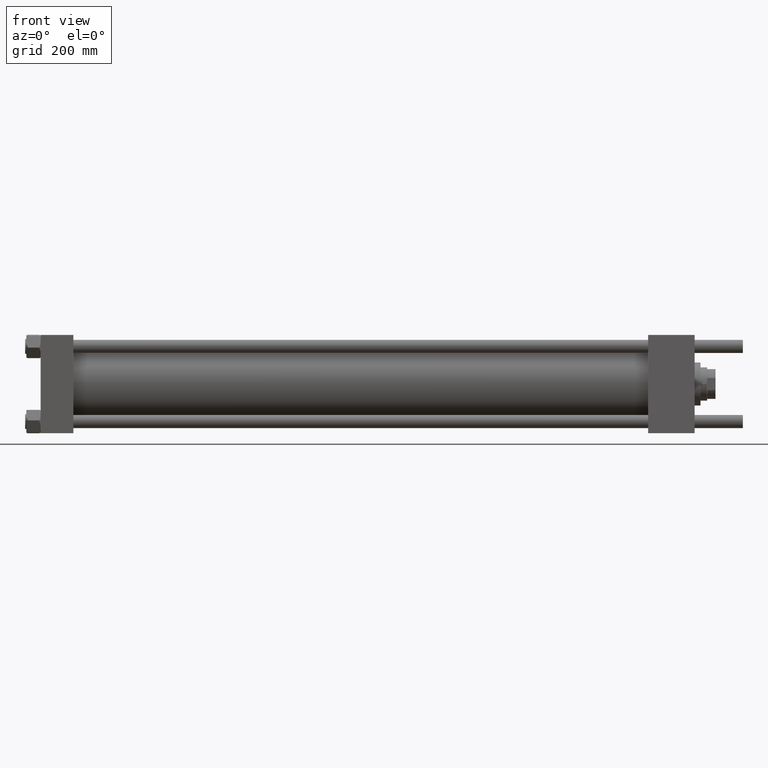
[diagram: clean part render]
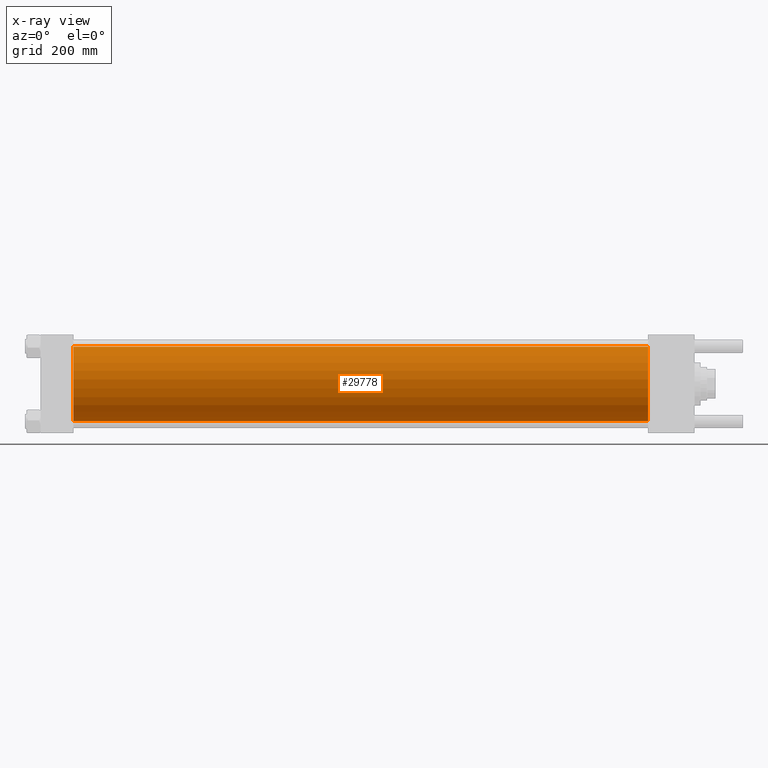
[diagram: x-ray — body ghosted, one internal face saturated and labeled with its STEP entity id]
A machine part, front view, then the same camera in x-ray: the body is ghosted and one INTERNAL B-rep face — a face not visible from any outside direction — is saturated and labeled: STEP entity #29778.
In plain terms, the highlighted cylindrical surface (partial cylindrical patch) has radius 62.5 mm, axis along (-1, -0, -0).
Its self-contained STEP definition (entity closure, byte-faithful):
#1433 = CIRCLE ( 'NONE', #3308, 62.50000000000000000 ) ;
#2151 = ORIENTED_EDGE ( 'NONE', *, *, #54338, .F. ) ;
#3308 = AXIS2_PLACEMENT_3D ( 'NONE', #21072, #34382, #25418 ) ;
#8370 = CARTESIAN_POINT ( 'NONE',  ( 1018.999999999999886, -2.602085213965210642E-15, 62.50000000000000000 ) ) ;
#9291 = DIRECTION ( 'NONE',  ( 0.000000000000000000, 0.000000000000000000, 1.000000000000000000 ) ) ;
#10065 = CARTESIAN_POINT ( 'NONE',  ( 1018.999999999999886, 5.051957280705747162E-15, -62.50000000000000000 ) ) ;
#13329 = CARTESIAN_POINT ( 'NONE',  ( 1018.999999999999886, 5.051957280705747162E-15, -62.50000000000000000 ) ) ;
#14216 = CARTESIAN_POINT ( 'NONE',  ( 55.00000000000000000, -2.602085213965210642E-15, 62.50000000000000000 ) ) ;
#14972 = EDGE_LOOP ( 'NONE', ( #21557, #38373, #2151, #55556 ) ) ;
#18271 = CARTESIAN_POINT ( 'NONE',  ( 1018.999999999999886, -2.602085213965210642E-15, 0.000000000000000000 ) ) ;
#21038 = EDGE_CURVE ( 'NONE', #23681, #41671, #39542, .T. ) ;
#21072 = CARTESIAN_POINT ( 'NONE',  ( 55.00000000000000000, -2.602085213965210642E-15, 0.000000000000000000 ) ) ;
#21557 = ORIENTED_EDGE ( 'NONE', *, *, #21038, .T. ) ;
#22017 = LINE ( 'NONE', #13329, #29073 ) ;
#23447 = VERTEX_POINT ( 'NONE', #14216 ) ;
#23681 = VERTEX_POINT ( 'NONE', #8370 ) ;
#24459 = DIRECTION ( 'NONE',  ( 0.000000000000000000, 0.000000000000000000, -1.000000000000000000 ) ) ;
#25418 = DIRECTION ( 'NONE',  ( 0.000000000000000000, 0.000000000000000000, -1.000000000000000000 ) ) ;
#25860 = VERTEX_POINT ( 'NONE', #38818 ) ;
#27945 = DIRECTION ( 'NONE',  ( 1.000000000000000000, 0.000000000000000000, 0.000000000000000000 ) ) ;
#29073 = VECTOR ( 'NONE', #35339, 1000.000000000000000 ) ;
#29778 = ADVANCED_FACE ( 'NONE', ( #48385 ), #44618, .F. ) ;
#34382 = DIRECTION ( 'NONE',  ( 1.000000000000000000, 0.000000000000000000, 0.000000000000000000 ) ) ;
#35339 = DIRECTION ( 'NONE',  ( -1.000000000000000000, -0.000000000000000000, -0.000000000000000000 ) ) ;
#35850 = AXIS2_PLACEMENT_3D ( 'NONE', #46456, #27945, #24459 ) ;
#37033 = CARTESIAN_POINT ( 'NONE',  ( 1018.999999999999886, -2.602085213965210642E-15, 62.50000000000000000 ) ) ;
#38373 = ORIENTED_EDGE ( 'NONE', *, *, #50556, .T. ) ;
#38818 = CARTESIAN_POINT ( 'NONE',  ( 55.00000000000000000, 5.051957280705747162E-15, -62.50000000000000000 ) ) ;
#38895 = AXIS2_PLACEMENT_3D ( 'NONE', #18271, #39701, #9291 ) ;
#39542 = CIRCLE ( 'NONE', #35850, 62.50000000000000000 ) ;
#39701 = DIRECTION ( 'NONE',  ( -1.000000000000000000, -0.000000000000000000, -0.000000000000000000 ) ) ;
#41671 = VERTEX_POINT ( 'NONE', #10065 ) ;
#42010 = VECTOR ( 'NONE', #45991, 1000.000000000000000 ) ;
#44618 = CYLINDRICAL_SURFACE ( 'NONE', #38895, 62.50000000000000000 ) ;
#45113 = EDGE_CURVE ( 'NONE', #23681, #23447, #50915, .T. ) ;
#45991 = DIRECTION ( 'NONE',  ( -1.000000000000000000, -0.000000000000000000, -0.000000000000000000 ) ) ;
#46456 = CARTESIAN_POINT ( 'NONE',  ( 1018.999999999999886, -2.602085213965210642E-15, 0.000000000000000000 ) ) ;
#48385 = FACE_OUTER_BOUND ( 'NONE', #14972, .T. ) ;
#50556 = EDGE_CURVE ( 'NONE', #41671, #25860, #22017, .T. ) ;
#50915 = LINE ( 'NONE', #37033, #42010 ) ;
#54338 = EDGE_CURVE ( 'NONE', #23447, #25860, #1433, .T. ) ;
#55556 = ORIENTED_EDGE ( 'NONE', *, *, #45113, .F. ) ;